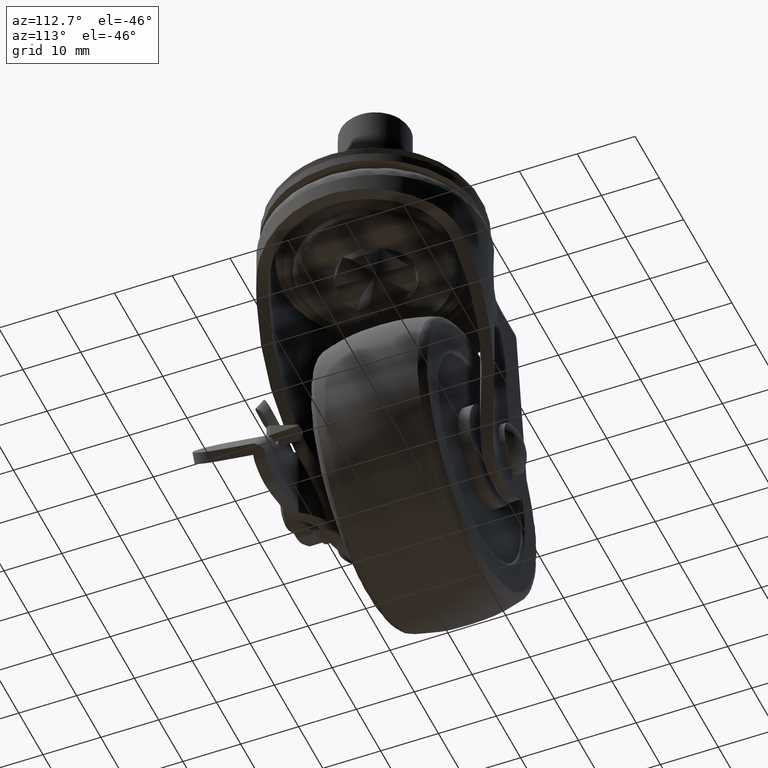
[diagram: clean part render]
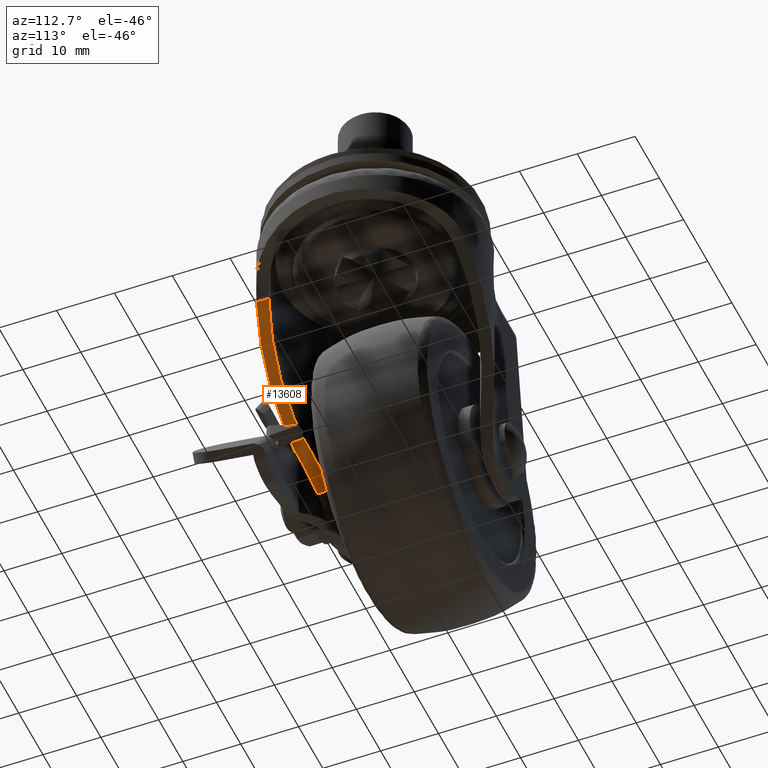
[diagram: same view with one face highlighted and labeled with its STEP entity id]
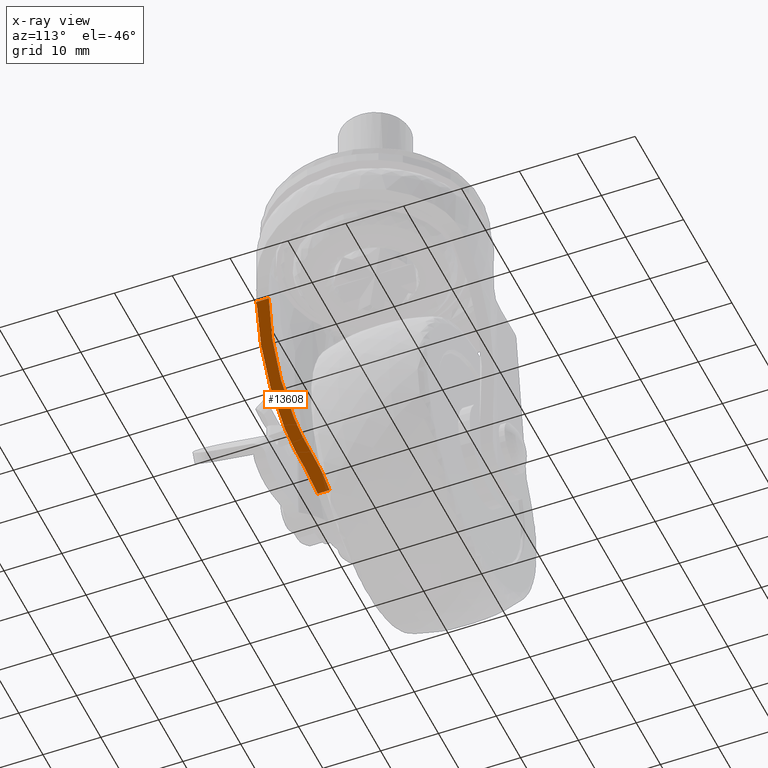
[diagram: x-ray of the same camera — body ghosted, the highlighted face saturated]
A machine part, auxiliary view. The second image highlights one B-rep face of the part: STEP entity #13608.
The next image is the same camera in x-ray: the body ghosted, the highlighted face saturated — about 2% of this face is hidden behind the body in this view.
In plain terms, the highlighted face is a freeform B-spline surface patch.
Its self-contained STEP definition (entity closure, byte-faithful):
#12798=CARTESIAN_POINT('',(-8.856239896303020,-14.510660103563101,-42.202124249578603));
#12799=VERTEX_POINT('',#12798);
#12805=CARTESIAN_POINT('',(-12.362730045456900,-13.071722964153160,-47.507164106145197));
#12806=VERTEX_POINT('',#12805);
#12807=CARTESIAN_POINT('',(-8.856239896303020,-14.510660103563101,-42.202124249578603));
#12808=CARTESIAN_POINT('',(-9.995731756766006,-13.826774408074630,-43.926084528619512));
#12809=CARTESIAN_POINT('',(-11.171906085566659,-13.344200922853830,-45.705542455818737));
#12810=CARTESIAN_POINT('',(-12.362730045456900,-13.071722964153160,-47.507164106145197));
#12811=B_SPLINE_CURVE_WITH_KNOTS('',3,(#12807,#12808,#12809,#12810),.UNSPECIFIED.,.F.,.U.,(4,4),(5.539889E-010,6.530166651628720),.UNSPECIFIED.);
#12812=EDGE_CURVE('',#12799,#12806,#12811,.T.);
#13027=CARTESIAN_POINT('',(5.947976629990610,-15.925664326638600,-19.804525689040801));
#13028=VERTEX_POINT('',#13027);
#13059=CARTESIAN_POINT('',(5.947976629990666,-15.925664326638589,-19.804525689040840));
#13060=CARTESIAN_POINT('',(-1.798260388782816,-18.818544834559173,-31.523964322832693));
#13061=CARTESIAN_POINT('',(-8.856239896302981,-14.510660103563120,-42.202124249578631));
#13069=(BOUNDED_CURVE()B_SPLINE_CURVE(2,(#13059,#13060,#13061),.UNSPECIFIED.,.F.,.U.)CURVE()GEOMETRIC_REPRESENTATION_ITEM()QUASI_UNIFORM_CURVE()RATIONAL_B_SPLINE_CURVE((1.0,0.899265817464231,1.0))REPRESENTATION_ITEM(''));
#13070=EDGE_CURVE('',#13028,#12799,#13069,.T.);
#13189=CARTESIAN_POINT('',(-12.362730045456900,-15.137688648611650,-47.507164106145197));
#13190=VERTEX_POINT('',#13189);
#13206=CARTESIAN_POINT('',(-9.898202001750420,-16.217796586335201,-43.778529789963400));
#13207=VERTEX_POINT('',#13206);
#13208=CARTESIAN_POINT('',(-9.898202001750420,-16.217796586335201,-43.778529789963400));
#13209=CARTESIAN_POINT('',(-10.701244892953540,-15.734312282535980,-44.993469619579741));
#13210=CARTESIAN_POINT('',(-11.526560223450391,-15.372572371010140,-46.242105873007887));
#13211=CARTESIAN_POINT('',(-12.362730045456900,-15.137688648611650,-47.507164106145197));
#13212=B_SPLINE_CURVE_WITH_KNOTS('',3,(#13208,#13209,#13210,#13211),.UNSPECIFIED.,.F.,.U.,(4,4),(5.282672E-010,4.603516483770068),.UNSPECIFIED.);
#13213=EDGE_CURVE('',#13207,#13190,#13212,.T.);
#13357=CARTESIAN_POINT('',(5.947976629990610,-18.045131871082852,-19.804525689040801));
#13358=VERTEX_POINT('',#13357);
#13359=CARTESIAN_POINT('',(5.947976629990664,-18.045131871082820,-19.804525689040840));
#13360=CARTESIAN_POINT('',(-2.397672616479237,-20.795794578362536,-32.430827203713775));
#13361=CARTESIAN_POINT('',(-9.898202001750438,-16.217796586335218,-43.778529789963393));
#13369=(BOUNDED_CURVE()B_SPLINE_CURVE(2,(#13359,#13360,#13361),.UNSPECIFIED.,.F.,.U.)CURVE()GEOMETRIC_REPRESENTATION_ITEM()QUASI_UNIFORM_CURVE()RATIONAL_B_SPLINE_CURVE((1.0,0.907631338041526,1.0))REPRESENTATION_ITEM(''));
#13370=EDGE_CURVE('',#13358,#13207,#13369,.T.);
#13587=CARTESIAN_POINT('',(6.862596564827369,-19.295853095515991,-18.420778693747000));
#13588=CARTESIAN_POINT('',(-13.277350307714570,-19.295853095515991,-48.890911596800812));
#13589=CARTESIAN_POINT('',(6.862596564827369,-12.775617953980660,-18.420778693747000));
#13590=CARTESIAN_POINT('',(-13.277350307714570,-12.775617953980660,-48.890911596800812));
#13591=B_SPLINE_SURFACE_WITH_KNOTS('',1,1,((#13587,#13589),(#13588,#13590)),.UNSPECIFIED.,.F.,.F.,.U.,(2,2),(2,2),(0.0,36.524600739208282),(0.0,6.520235141535334),.UNSPECIFIED.);
#13592=ORIENTED_EDGE('',*,*,#12812,.F.);
#13593=ORIENTED_EDGE('',*,*,#13070,.F.);
#13594=CARTESIAN_POINT('',(5.947976629990610,-15.925664326638600,-19.804525689040801));
#13595=CARTESIAN_POINT('',(5.947976629990610,-18.045131871082852,-19.804525689040801));
#13596=QUASI_UNIFORM_CURVE('',1,(#13594,#13595),.UNSPECIFIED.,.F.,.U.);
#13597=EDGE_CURVE('',#13028,#13358,#13596,.T.);
#13598=ORIENTED_EDGE('',*,*,#13597,.T.);
#13599=ORIENTED_EDGE('',*,*,#13370,.T.);
#13600=ORIENTED_EDGE('',*,*,#13213,.T.);
#13601=CARTESIAN_POINT('',(-12.362730045456900,-13.071722964153160,-47.507164106145197));
#13602=CARTESIAN_POINT('',(-12.362730045456900,-15.137688648611650,-47.507164106145197));
#13603=QUASI_UNIFORM_CURVE('',1,(#13601,#13602),.UNSPECIFIED.,.F.,.U.);
#13604=EDGE_CURVE('',#12806,#13190,#13603,.T.);
#13605=ORIENTED_EDGE('',*,*,#13604,.F.);
#13606=EDGE_LOOP('',(#13592,#13593,#13598,#13599,#13600,#13605));
#13607=FACE_OUTER_BOUND('',#13606,.T.);
#13608=ADVANCED_FACE('',(#13607),#13591,.T.);